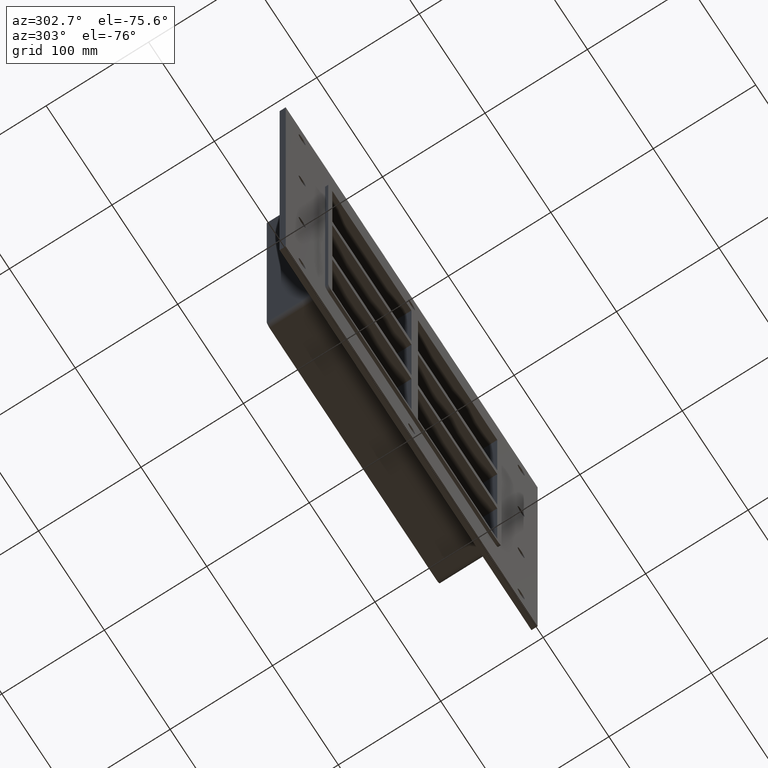
[diagram: clean part render]
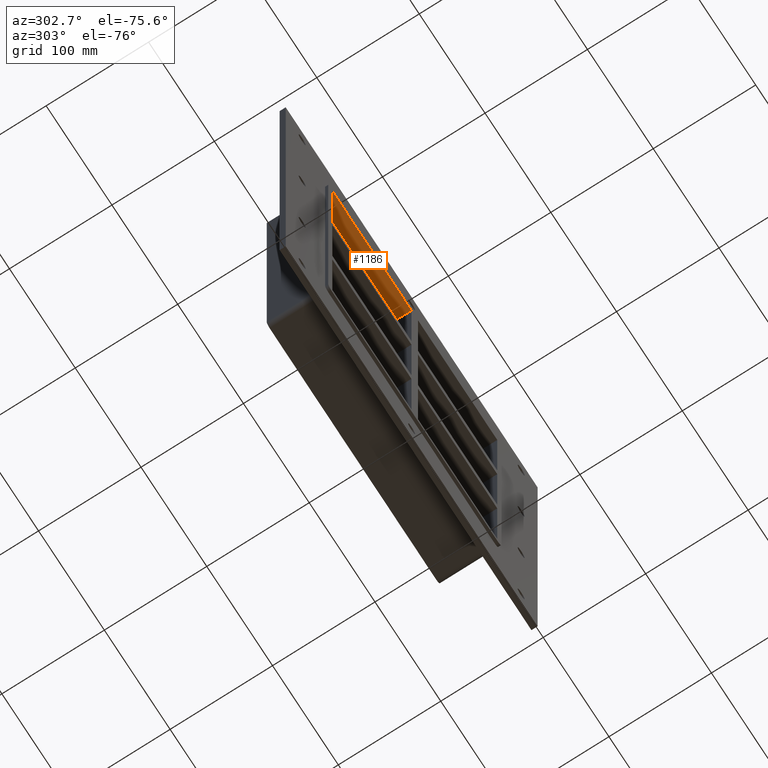
[diagram: same view with one face highlighted and labeled with its STEP entity id]
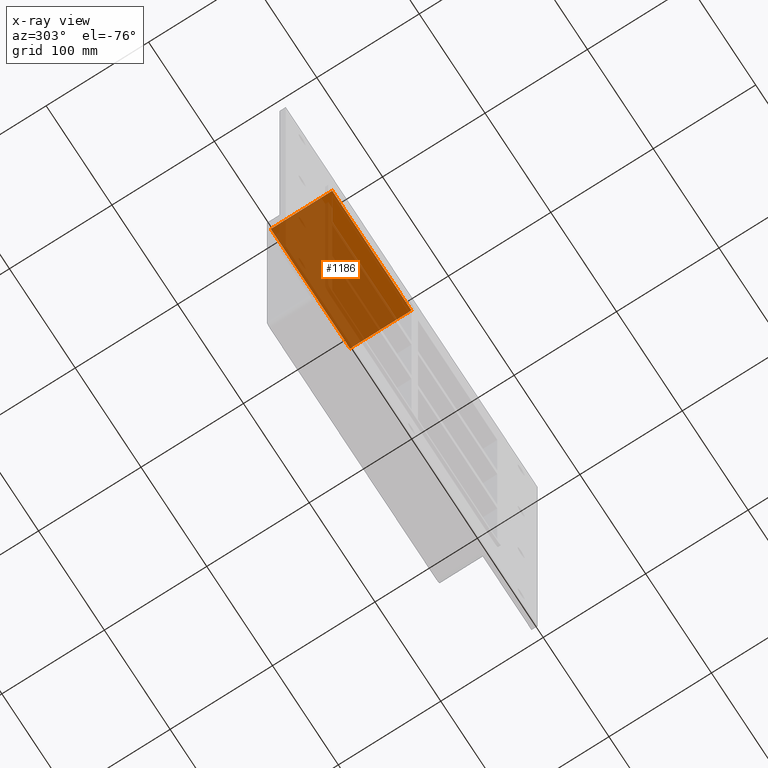
[diagram: x-ray of the same camera — body ghosted, the highlighted face saturated]
A machine part, auxiliary view. The second image highlights one B-rep face of the part: STEP entity #1186.
The next image is the same camera in x-ray: the body ghosted, the highlighted face saturated — about 77% of this face is hidden behind the body in this view.
In plain terms, the highlighted planar face has unit normal (0, 0, 1).
Its self-contained STEP definition (entity closure, byte-faithful):
#607=CARTESIAN_POINT('',(-5.000000000002078,-3.0,163.5));
#608=VERTEX_POINT('',#607);
#615=CARTESIAN_POINT('',(-5.000000000002078,57.0,163.5));
#616=VERTEX_POINT('',#615);
#617=CARTESIAN_POINT('',(-5.000000000002078,57.000000000000007,163.5));
#618=DIRECTION('',(0.0,-1.0,0.0));
#619=VECTOR('',#618,60.000000000000007);
#620=LINE('',#617,#619);
#621=EDGE_CURVE('',#616,#608,#620,.T.);
#833=CARTESIAN_POINT('',(-125.49999999999997,57.0,163.5));
#834=VERTEX_POINT('',#833);
#841=CARTESIAN_POINT('',(-125.49999999999997,-3.0,163.5));
#842=VERTEX_POINT('',#841);
#843=CARTESIAN_POINT('',(-125.49999999999997,-3.0,163.5));
#844=DIRECTION('',(0.0,1.0,0.0));
#845=VECTOR('',#844,60.0);
#846=LINE('',#843,#845);
#847=EDGE_CURVE('',#842,#834,#846,.T.);
#994=CARTESIAN_POINT('',(-5.000000000002075,57.0,163.5));
#995=DIRECTION('',(-1.0,0.0,0.0));
#996=VECTOR('',#995,120.4999999999979);
#997=LINE('',#994,#996);
#998=EDGE_CURVE('',#616,#834,#997,.T.);
#1170=CARTESIAN_POINT('',(-125.49999999999997,0.0,163.5));
#1171=DIRECTION('',(0.0,0.0,1.0));
#1172=DIRECTION('',(1.0,0.0,0.0));
#1173=AXIS2_PLACEMENT_3D('',#1170,#1171,#1172);
#1174=PLANE('',#1173);
#1175=ORIENTED_EDGE('',*,*,#621,.T.);
#1176=CARTESIAN_POINT('',(-125.49999999999997,-3.0,163.5));
#1177=DIRECTION('',(1.0,0.0,0.0));
#1178=VECTOR('',#1177,120.4999999999979);
#1179=LINE('',#1176,#1178);
#1180=EDGE_CURVE('',#842,#608,#1179,.T.);
#1181=ORIENTED_EDGE('',*,*,#1180,.F.);
#1182=ORIENTED_EDGE('',*,*,#847,.T.);
#1183=ORIENTED_EDGE('',*,*,#998,.F.);
#1184=EDGE_LOOP('',(#1175,#1181,#1182,#1183));
#1185=FACE_OUTER_BOUND('',#1184,.T.);
#1186=ADVANCED_FACE('',(#1185),#1174,.F.);